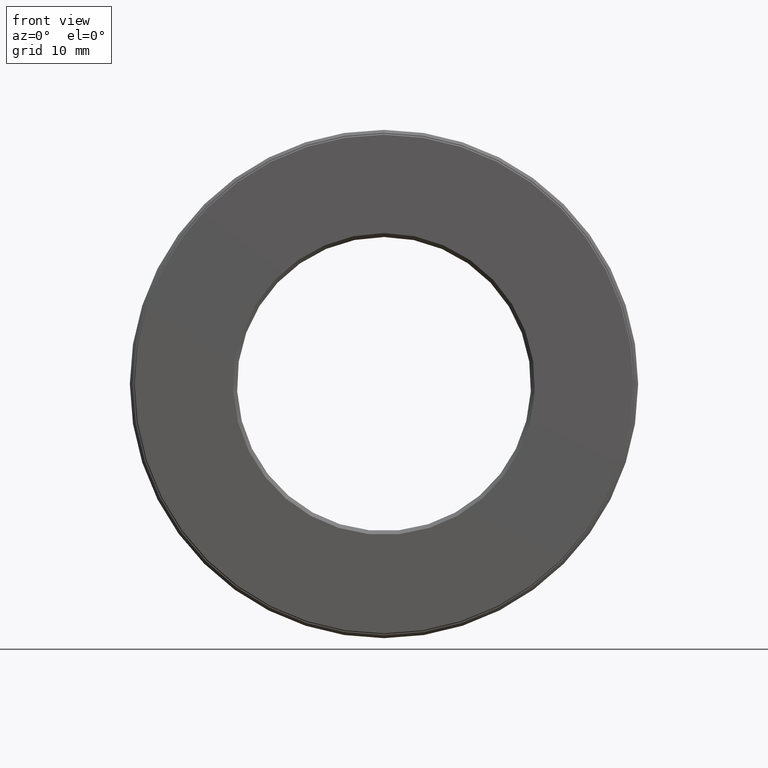
[diagram: clean part render]
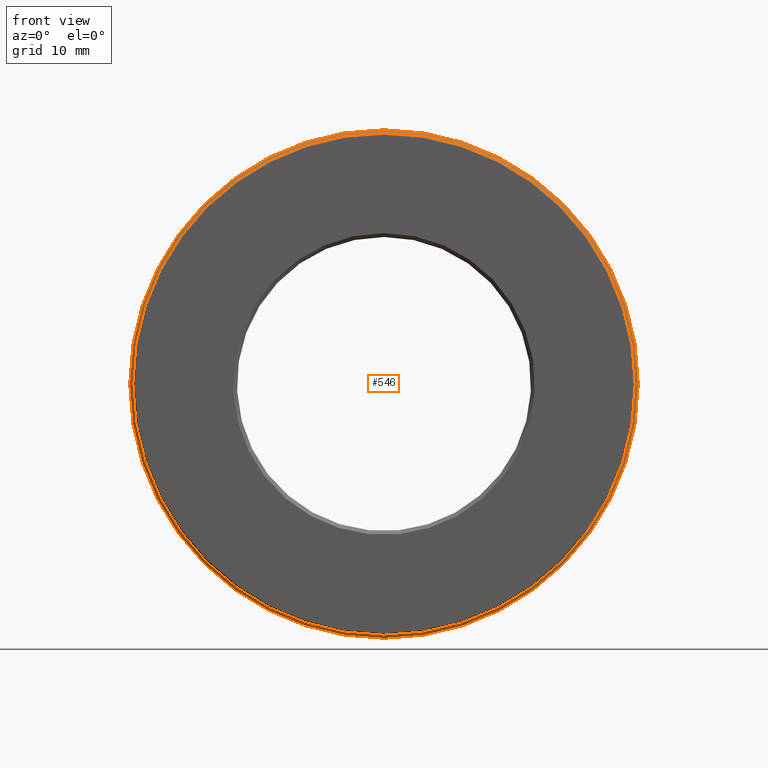
[diagram: same view with one face highlighted and labeled with its STEP entity id]
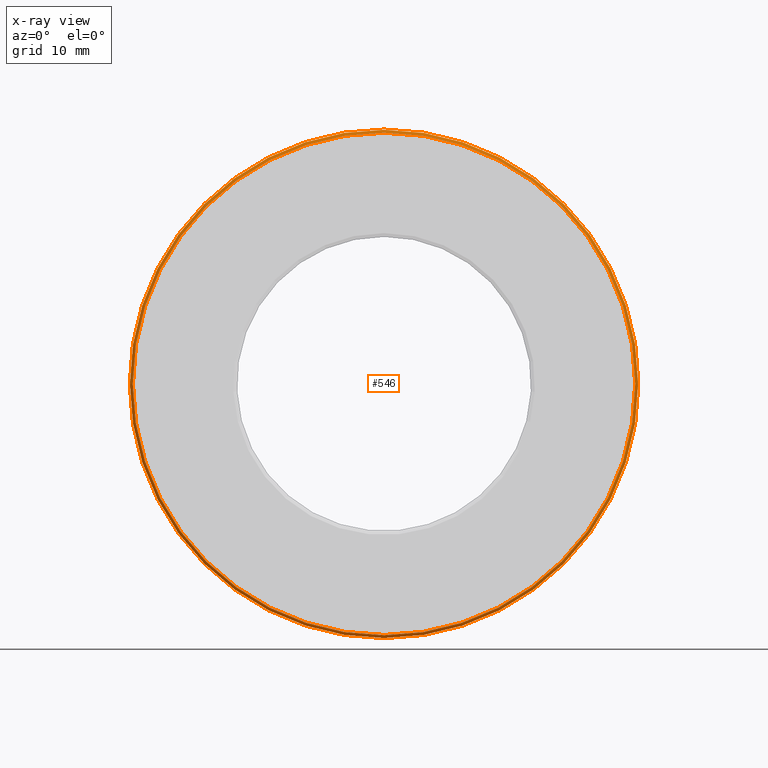
[diagram: x-ray of the same camera — body ghosted, the highlighted face saturated]
A machine part, front view. The second image highlights one B-rep face of the part: STEP entity #546.
The next image is the same camera in x-ray: the body ghosted, the highlighted face saturated — about 0% of this face is hidden behind the body in this view.
In plain terms, the highlighted conical surface has half-angle 45 deg.
Its self-contained STEP definition (entity closure, byte-faithful):
#1 = DIRECTION ( 'NONE',  ( 0.0000000000000000000, 0.0000000000000000000, 1.000000000000000000 ) ) ;
#62 = DIRECTION ( 'NONE',  ( 0.0000000000000000000, 0.0000000000000000000, 1.000000000000000000 ) ) ;
#116 = CARTESIAN_POINT ( 'NONE',  ( 0.0000000000000000000, 0.01499999999999984000, 1.296875000000000000 ) ) ;
#125 = EDGE_LOOP ( 'NONE', ( #505 ) ) ;
#173 = AXIS2_PLACEMENT_3D ( 'NONE', #330, #195, #1 ) ;
#181 = CARTESIAN_POINT ( 'NONE',  ( 0.0000000000000000000, -7.043045608665678100E-017, 1.281875000000000100 ) ) ;
#195 = DIRECTION ( 'NONE',  ( -0.0000000000000000000, 1.000000000000000000, -0.0000000000000000000 ) ) ;
#247 = DIRECTION ( 'NONE',  ( -0.0000000000000000000, 1.000000000000000000, -0.0000000000000000000 ) ) ;
#255 = DIRECTION ( 'NONE',  ( 0.0000000000000000000, 0.0000000000000000000, 1.000000000000000000 ) ) ;
#267 = CIRCLE ( 'NONE', #173, 1.296875000000000000 ) ;
#287 = DIRECTION ( 'NONE',  ( -0.0000000000000000000, 1.000000000000000000, -0.0000000000000000000 ) ) ;
#293 = VERTEX_POINT ( 'NONE', #116 ) ;
#317 = EDGE_CURVE ( 'NONE', #293, #293, #267, .T. ) ;
#319 = CIRCLE ( 'NONE', #439, 1.281875000000000100 ) ;
#330 = CARTESIAN_POINT ( 'NONE',  ( 0.0000000000000000000, 0.01499999999999984000, 0.0000000000000000000 ) ) ;
#378 = VERTEX_POINT ( 'NONE', #181 ) ;
#388 = EDGE_CURVE ( 'NONE', #378, #378, #319, .T. ) ;
#390 = CARTESIAN_POINT ( 'NONE',  ( 0.0000000000000000000, -7.043045608665678100E-017, 0.0000000000000000000 ) ) ;
#439 = AXIS2_PLACEMENT_3D ( 'NONE', #390, #287, #62 ) ;
#453 = FACE_BOUND ( 'NONE', #470, .T. ) ;
#470 = EDGE_LOOP ( 'NONE', ( #587 ) ) ;
#487 = CARTESIAN_POINT ( 'NONE',  ( 0.0000000000000000000, -7.043045608665678100E-017, 0.0000000000000000000 ) ) ;
#505 = ORIENTED_EDGE ( 'NONE', *, *, #317, .F. ) ;
#526 = FACE_OUTER_BOUND ( 'NONE', #125, .T. ) ;
#533 = CONICAL_SURFACE ( 'NONE', #537, 1.281875000000000100, 0.7853981633974505000 ) ;
#537 = AXIS2_PLACEMENT_3D ( 'NONE', #487, #247, #255 ) ;
#546 = ADVANCED_FACE ( 'NONE', ( #526, #453 ), #533, .T. ) ;
#587 = ORIENTED_EDGE ( 'NONE', *, *, #388, .T. ) ;